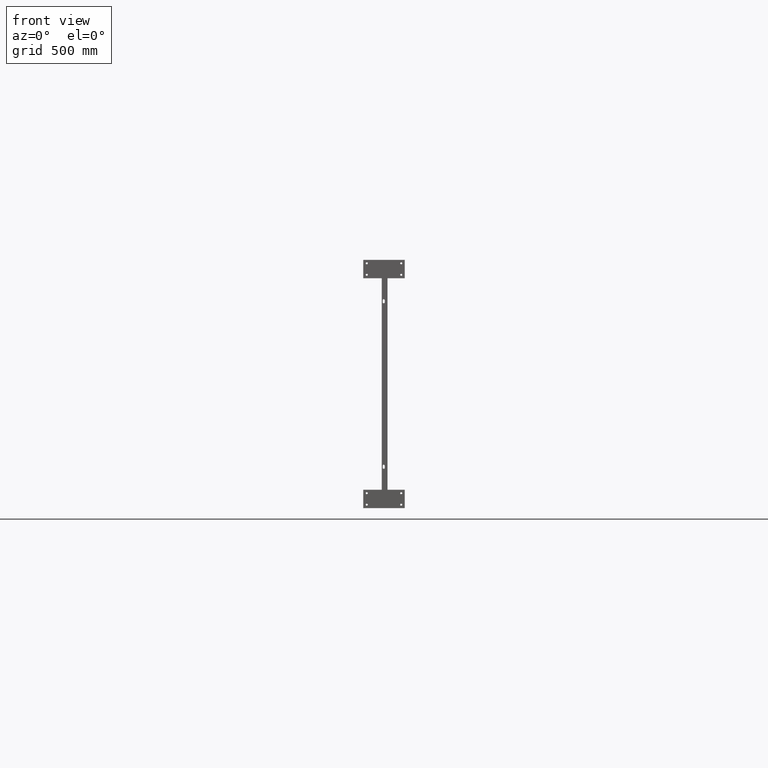
[diagram: clean part render]
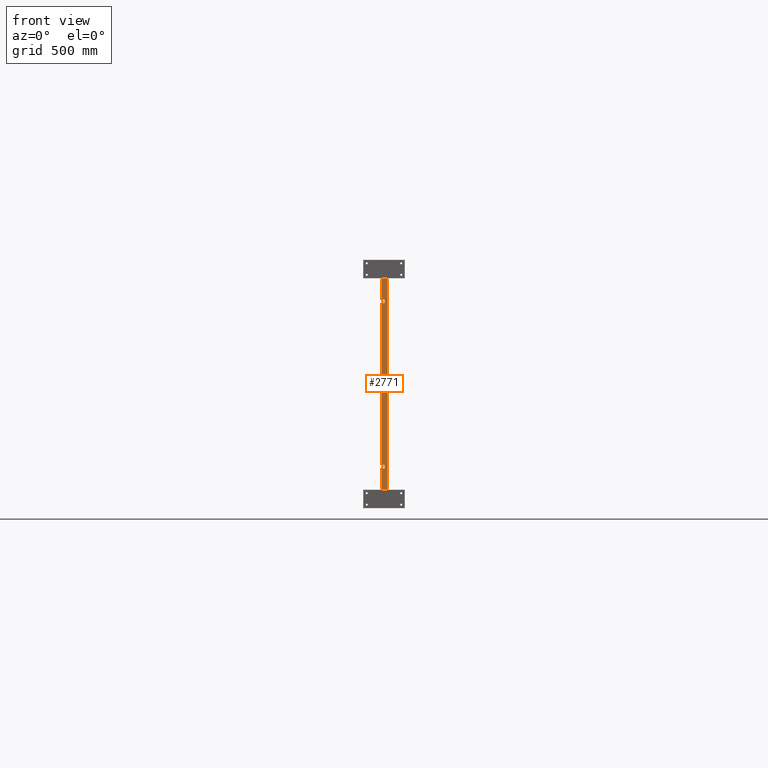
[diagram: same view with one face highlighted and labeled with its STEP entity id]
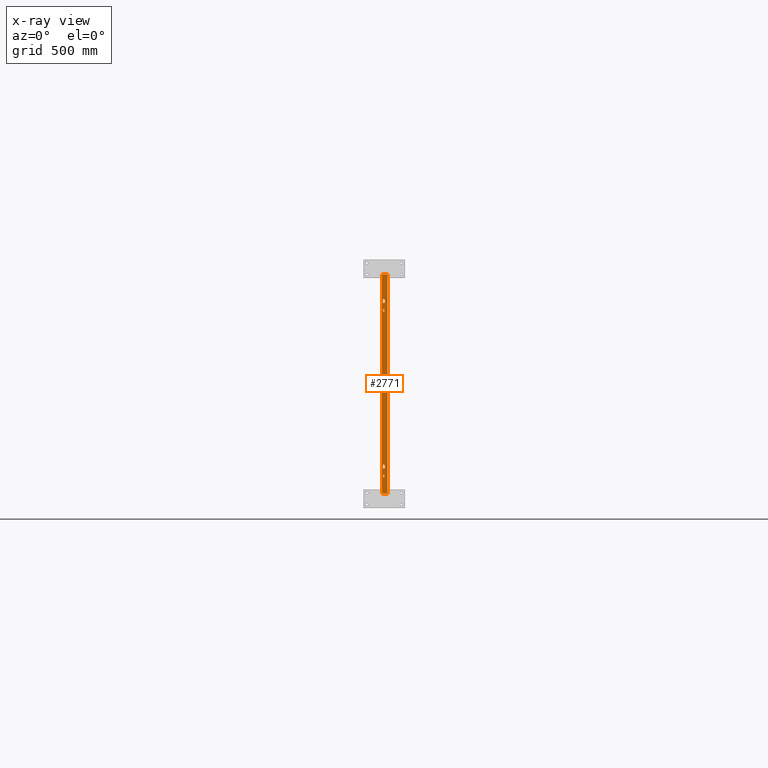
[diagram: x-ray of the same camera — body ghosted, the highlighted face saturated]
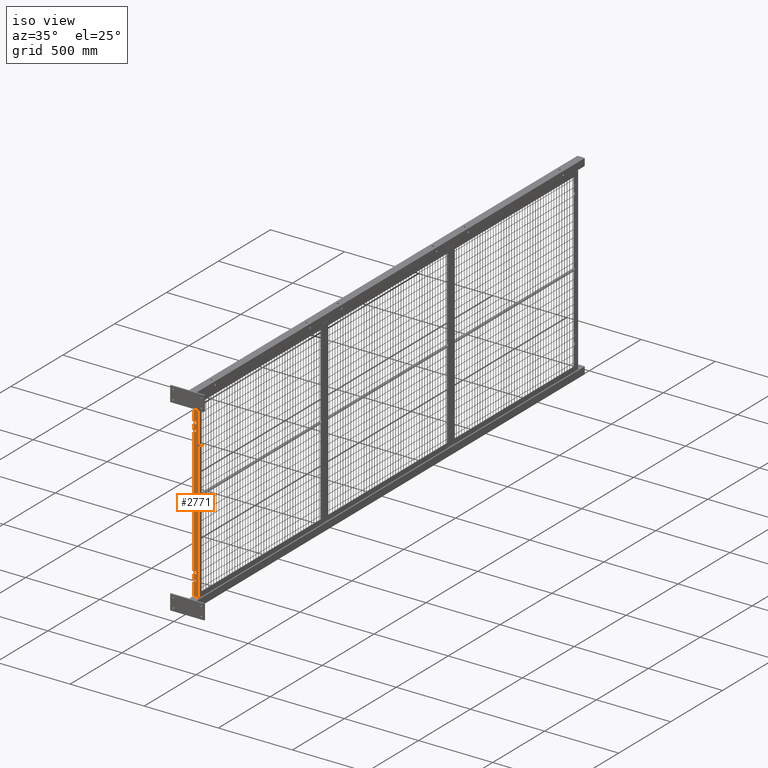
[diagram: same view with one face highlighted and labeled with its STEP entity id]
A machine part, front view. The second image highlights one B-rep face of the part: STEP entity #2771.
The next image is the same camera in x-ray: the body ghosted, the highlighted face saturated — about 0% of this face is hidden behind the body in this view.
A second angle (iso view) of the same face is appended — the face is thin or edge-on in the first view.
In plain terms, the highlighted planar face has unit normal (0, -1, 0).
Its self-contained STEP definition (entity closure, byte-faithful):
#2080=CARTESIAN_POINT('',(0.0,0.593749999999999,18.218750000000000));
#2081=VERTEX_POINT('',#2080);
#2088=CARTESIAN_POINT('',(0.0,0.593749999999999,17.781250000000000));
#2089=VERTEX_POINT('',#2088);
#2090=CARTESIAN_POINT('',(0.0,0.593749999999999,17.781250000000000));
#2091=DIRECTION('',(0.0,0.0,1.0));
#2092=VECTOR('',#2091,0.437500000000000);
#2093=LINE('',#2090,#2092);
#2094=EDGE_CURVE('',#2089,#2081,#2093,.T.);
#2120=CARTESIAN_POINT('',(0.0,1.031249999999999,17.781250000000000));
#2121=VERTEX_POINT('',#2120);
#2122=CARTESIAN_POINT('',(0.0,0.812499999999999,17.781250000000000));
#2123=DIRECTION('',(-1.0,0.0,0.0));
#2124=DIRECTION('',(0.0,-1.0,0.0));
#2125=AXIS2_PLACEMENT_3D('',#2122,#2123,#2124);
#2126=CIRCLE('',#2125,0.218750000000000);
#2127=EDGE_CURVE('',#2121,#2089,#2126,.T.);
#2152=CARTESIAN_POINT('',(0.0,1.031249999999999,18.218750000000000));
#2153=VERTEX_POINT('',#2152);
#2154=CARTESIAN_POINT('',(0.0,1.031249999999999,18.218750000000000));
#2155=DIRECTION('',(0.0,0.0,-1.0));
#2156=VECTOR('',#2155,0.437500000000000);
#2157=LINE('',#2154,#2156);
#2158=EDGE_CURVE('',#2153,#2121,#2157,.T.);
#2182=CARTESIAN_POINT('',(0.0,0.812499999999999,18.218750000000004));
#2183=DIRECTION('',(-1.0,0.0,0.0));
#2184=DIRECTION('',(0.0,1.0,0.0));
#2185=AXIS2_PLACEMENT_3D('',#2182,#2183,#2184);
#2186=CIRCLE('',#2185,0.218750000000000);
#2187=EDGE_CURVE('',#2081,#2153,#2186,.T.);
#2208=CARTESIAN_POINT('',(0.0,0.593749999999999,-17.781250000000004));
#2209=VERTEX_POINT('',#2208);
#2216=CARTESIAN_POINT('',(0.0,0.593749999999999,-18.218750000000004));
#2217=VERTEX_POINT('',#2216);
#2218=CARTESIAN_POINT('',(0.0,0.593749999999999,-18.218750000000004));
#2219=DIRECTION('',(0.0,0.0,1.0));
#2220=VECTOR('',#2219,0.437500000000000);
#2221=LINE('',#2218,#2220);
#2222=EDGE_CURVE('',#2217,#2209,#2221,.T.);
#2248=CARTESIAN_POINT('',(0.0,1.031249999999999,-18.218750000000004));
#2249=VERTEX_POINT('',#2248);
#2250=CARTESIAN_POINT('',(0.0,0.812499999999999,-18.218750000000004));
#2251=DIRECTION('',(-1.0,0.0,0.0));
#2252=DIRECTION('',(0.0,-1.0,0.0));
#2253=AXIS2_PLACEMENT_3D('',#2250,#2251,#2252);
#2254=CIRCLE('',#2253,0.218750000000000);
#2255=EDGE_CURVE('',#2249,#2217,#2254,.T.);
#2280=CARTESIAN_POINT('',(0.0,1.031249999999999,-17.781250000000004));
#2281=VERTEX_POINT('',#2280);
#2282=CARTESIAN_POINT('',(0.0,1.031249999999999,-17.781250000000004));
#2283=DIRECTION('',(0.0,0.0,-1.0));
#2284=VECTOR('',#2283,0.437500000000000);
#2285=LINE('',#2282,#2284);
#2286=EDGE_CURVE('',#2281,#2249,#2285,.T.);
#2310=CARTESIAN_POINT('',(0.0,0.812499999999999,-17.781250000000004));
#2311=DIRECTION('',(-1.0,0.0,0.0));
#2312=DIRECTION('',(0.0,1.0,0.0));
#2313=AXIS2_PLACEMENT_3D('',#2310,#2311,#2312);
#2314=CIRCLE('',#2313,0.218750000000000);
#2315=EDGE_CURVE('',#2209,#2281,#2314,.T.);
#2337=CARTESIAN_POINT('',(0.0,0.968749999999999,20.156250000000000));
#2338=VERTEX_POINT('',#2337);
#2345=CARTESIAN_POINT('',(0.0,0.656249999999999,20.156250000000000));
#2346=VERTEX_POINT('',#2345);
#2347=CARTESIAN_POINT('',(0.0,0.812500000000000,20.156250000000004));
#2348=DIRECTION('',(-1.0,0.0,0.0));
#2349=DIRECTION('',(0.0,1.0,0.0));
#2350=AXIS2_PLACEMENT_3D('',#2347,#2348,#2349);
#2351=CIRCLE('',#2350,0.156250000000000);
#2352=EDGE_CURVE('',#2346,#2338,#2351,.T.);
#2377=CARTESIAN_POINT('',(0.0,0.656249999999999,19.843750000000004));
#2378=VERTEX_POINT('',#2377);
#2379=CARTESIAN_POINT('',(0.0,0.656249999999999,19.843750000000000));
#2380=DIRECTION('',(0.0,0.0,1.0));
#2381=VECTOR('',#2380,0.312500000000000);
#2382=LINE('',#2379,#2381);
#2383=EDGE_CURVE('',#2378,#2346,#2382,.T.);
#2409=CARTESIAN_POINT('',(0.0,0.968749999999999,19.843750000000004));
#2410=VERTEX_POINT('',#2409);
#2411=CARTESIAN_POINT('',(0.0,0.812500000000000,19.843750000000004));
#2412=DIRECTION('',(-1.0,0.0,0.0));
#2413=DIRECTION('',(0.0,-1.0,0.0));
#2414=AXIS2_PLACEMENT_3D('',#2411,#2412,#2413);
#2415=CIRCLE('',#2414,0.156250000000000);
#2416=EDGE_CURVE('',#2410,#2378,#2415,.T.);
#2439=CARTESIAN_POINT('',(0.0,0.968750000000000,20.156250000000000));
#2440=DIRECTION('',(0.0,0.0,-1.0));
#2441=VECTOR('',#2440,0.312499999999996);
#2442=LINE('',#2439,#2441);
#2443=EDGE_CURVE('',#2338,#2410,#2442,.T.);
#2465=CARTESIAN_POINT('',(0.0,0.968749999999999,-15.843750000000004));
#2466=VERTEX_POINT('',#2465);
#2473=CARTESIAN_POINT('',(0.0,0.656249999999999,-15.843750000000004));
#2474=VERTEX_POINT('',#2473);
#2475=CARTESIAN_POINT('',(0.0,0.812500000000000,-15.843750000000004));
#2476=DIRECTION('',(-1.0,0.0,0.0));
#2477=DIRECTION('',(0.0,1.0,0.0));
#2478=AXIS2_PLACEMENT_3D('',#2475,#2476,#2477);
#2479=CIRCLE('',#2478,0.156250000000000);
#2480=EDGE_CURVE('',#2474,#2466,#2479,.T.);
#2505=CARTESIAN_POINT('',(0.0,0.656249999999999,-16.156250000000000));
#2506=VERTEX_POINT('',#2505);
#2507=CARTESIAN_POINT('',(0.0,0.656249999999999,-16.156250000000000));
#2508=DIRECTION('',(0.0,0.0,1.0));
#2509=VECTOR('',#2508,0.312499999999996);
#2510=LINE('',#2507,#2509);
#2511=EDGE_CURVE('',#2506,#2474,#2510,.T.);
#2537=CARTESIAN_POINT('',(0.0,0.968749999999999,-16.156250000000000));
#2538=VERTEX_POINT('',#2537);
#2539=CARTESIAN_POINT('',(0.0,0.812500000000000,-16.156250000000004));
#2540=DIRECTION('',(-1.0,0.0,0.0));
#2541=DIRECTION('',(0.0,-1.0,0.0));
#2542=AXIS2_PLACEMENT_3D('',#2539,#2540,#2541);
#2543=CIRCLE('',#2542,0.156250000000000);
#2544=EDGE_CURVE('',#2538,#2506,#2543,.T.);
#2567=CARTESIAN_POINT('',(0.0,0.968750000000000,-15.843750000000004));
#2568=DIRECTION('',(0.0,0.0,-1.0));
#2569=VECTOR('',#2568,0.312499999999996);
#2570=LINE('',#2567,#2569);
#2571=EDGE_CURVE('',#2466,#2538,#2570,.T.);
#2609=CARTESIAN_POINT('',(0.0,1.250000000000000,-23.812500000000000));
#2610=VERTEX_POINT('',#2609);
#2618=CARTESIAN_POINT('',(0.0,0.0,-23.812500000000000));
#2619=VERTEX_POINT('',#2618);
#2620=CARTESIAN_POINT('',(0.0,0.0,-23.812500000000000));
#2621=DIRECTION('',(0.0,1.0,0.0));
#2622=VECTOR('',#2621,1.250000000000000);
#2623=LINE('',#2620,#2622);
#2624=EDGE_CURVE('',#2619,#2610,#2623,.T.);
#2704=CARTESIAN_POINT('',(0.0,1.250000000000000,23.812500000000000));
#2705=VERTEX_POINT('',#2704);
#2713=CARTESIAN_POINT('',(0.0,1.250000000000000,23.812500000000000));
#2714=DIRECTION('',(0.0,0.0,-1.0));
#2715=VECTOR('',#2714,47.625000000000000);
#2716=LINE('',#2713,#2715);
#2717=EDGE_CURVE('',#2705,#2610,#2716,.T.);
#2724=CARTESIAN_POINT('',(0.0,1.250000000000000,0.0));
#2725=DIRECTION('',(1.0,0.0,0.0));
#2726=DIRECTION('',(0.0,0.0,-1.0));
#2727=AXIS2_PLACEMENT_3D('',#2724,#2725,#2726);
#2728=PLANE('',#2727);
#2729=CARTESIAN_POINT('',(0.0,0.0,23.812500000000000));
#2730=VERTEX_POINT('',#2729);
#2731=CARTESIAN_POINT('',(0.0,1.250000000000000,23.812500000000000));
#2732=DIRECTION('',(0.0,-1.0,0.0));
#2733=VECTOR('',#2732,1.250000000000000);
#2734=LINE('',#2731,#2733);
#2735=EDGE_CURVE('',#2705,#2730,#2734,.T.);
#2736=ORIENTED_EDGE('',*,*,#2735,.T.);
#2737=CARTESIAN_POINT('',(0.0,0.0,23.812500000000000));
#2738=DIRECTION('',(0.0,0.0,-1.0));
#2739=VECTOR('',#2738,47.625000000000000);
#2740=LINE('',#2737,#2739);
#2741=EDGE_CURVE('',#2730,#2619,#2740,.T.);
#2742=ORIENTED_EDGE('',*,*,#2741,.T.);
#2743=ORIENTED_EDGE('',*,*,#2624,.T.);
#2744=ORIENTED_EDGE('',*,*,#2717,.F.);
#2745=EDGE_LOOP('',(#2736,#2742,#2743,#2744));
#2746=FACE_OUTER_BOUND('',#2745,.T.);
#2747=ORIENTED_EDGE('',*,*,#2158,.T.);
#2748=ORIENTED_EDGE('',*,*,#2127,.T.);
#2749=ORIENTED_EDGE('',*,*,#2094,.T.);
#2750=ORIENTED_EDGE('',*,*,#2187,.T.);
#2751=EDGE_LOOP('',(#2747,#2748,#2749,#2750));
#2752=FACE_BOUND('',#2751,.T.);
#2753=ORIENTED_EDGE('',*,*,#2286,.T.);
#2754=ORIENTED_EDGE('',*,*,#2255,.T.);
#2755=ORIENTED_EDGE('',*,*,#2222,.T.);
#2756=ORIENTED_EDGE('',*,*,#2315,.T.);
#2757=EDGE_LOOP('',(#2753,#2754,#2755,#2756));
#2758=FACE_BOUND('',#2757,.T.);
#2759=ORIENTED_EDGE('',*,*,#2416,.T.);
#2760=ORIENTED_EDGE('',*,*,#2383,.T.);
#2761=ORIENTED_EDGE('',*,*,#2352,.T.);
#2762=ORIENTED_EDGE('',*,*,#2443,.T.);
#2763=EDGE_LOOP('',(#2759,#2760,#2761,#2762));
#2764=FACE_BOUND('',#2763,.T.);
#2765=ORIENTED_EDGE('',*,*,#2544,.T.);
#2766=ORIENTED_EDGE('',*,*,#2511,.T.);
#2767=ORIENTED_EDGE('',*,*,#2480,.T.);
#2768=ORIENTED_EDGE('',*,*,#2571,.T.);
#2769=EDGE_LOOP('',(#2765,#2766,#2767,#2768));
#2770=FACE_BOUND('',#2769,.T.);
#2771=ADVANCED_FACE('',(#2746,#2752,#2758,#2764,#2770),#2728,.T.);